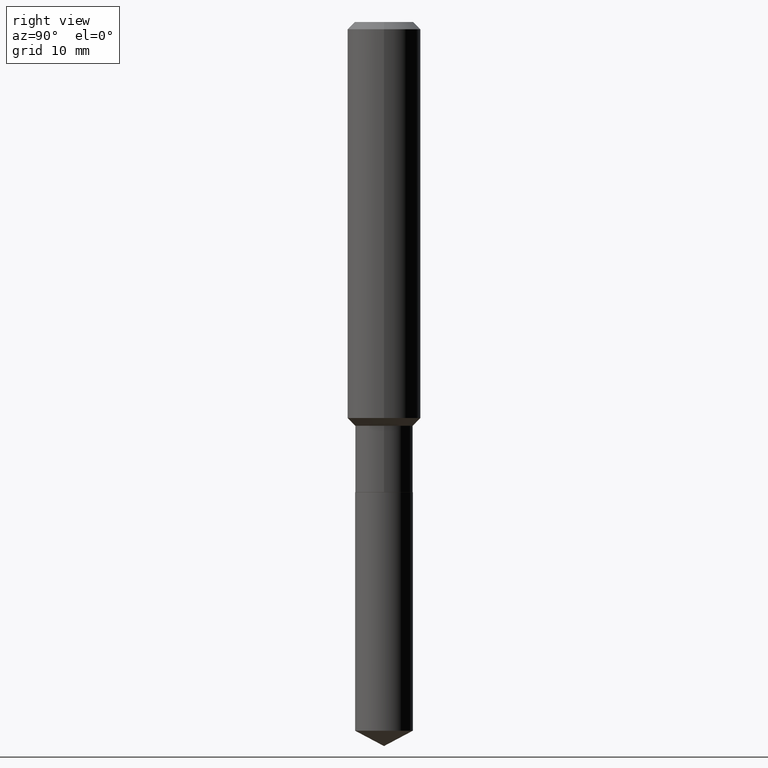
[diagram: clean part render]
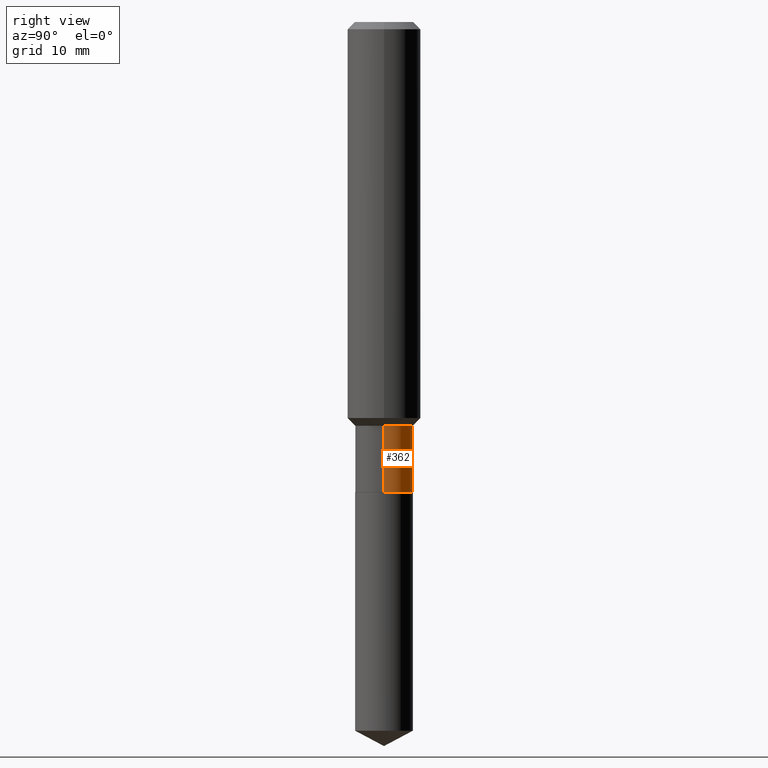
[diagram: same view with one face highlighted and labeled with its STEP entity id]
A machine part, right view. The second image highlights one B-rep face of the part: STEP entity #362.
In plain terms, the highlighted cylindrical surface (edge-blend (fillet) strip) has radius 3.1496 mm, axis along (-0, 0, 1).
Its self-contained STEP definition (entity closure, byte-faithful):
#21 = CARTESIAN_POINT ( 'NONE',  ( -0.1239999999999999991, 8.810729923425242242E-16, -6.099479511916082446E-30 ) ) ;
#33 = VECTOR ( 'NONE', #94, 39.37007874015748143 ) ;
#46 = CARTESIAN_POINT ( 'NONE',  ( 0.000000000000000000, 0.000000000000000000, 0.000000000000000000 ) ) ;
#66 = LINE ( 'NONE', #224, #33 ) ;
#94 = DIRECTION ( 'NONE',  ( -2.445468806185136877E-29, 3.491481338843145188E-15, 1.000000000000000000 ) ) ;
#141 = DIRECTION ( 'NONE',  ( 1.000000000000000000, -6.982962677686269866E-15, 0.000000000000000000 ) ) ;
#145 = EDGE_CURVE ( 'NONE', #148, #377, #262, .T. ) ;
#148 = VERTEX_POINT ( 'NONE', #193 ) ;
#153 = CYLINDRICAL_SURFACE ( 'NONE', #471, 0.1239999999999999991 ) ;
#166 = CARTESIAN_POINT ( 'NONE',  ( -0.1239999999999999575, -5.671564610331350140E-15, -1.734400000000000164 ) ) ;
#172 = EDGE_CURVE ( 'NONE', #235, #373, #456, .T. ) ;
#173 = EDGE_CURVE ( 'NONE', #235, #148, #66, .T. ) ;
#179 = DIRECTION ( 'NONE',  ( -2.445468806185136597E-29, 3.491481338843145583E-15, 1.000000000000000000 ) ) ;
#193 = CARTESIAN_POINT ( 'NONE',  ( 0.1239999999999999575, -6.921512606122648718E-15, -1.734400000000000164 ) ) ;
#209 = CARTESIAN_POINT ( 'NONE',  ( 4.241421097447501822E-29, -6.055625234089552182E-15, -1.734400000000000164 ) ) ;
#221 = ORIENTED_EDGE ( 'NONE', *, *, #252, .T. ) ;
#222 = ORIENTED_EDGE ( 'NONE', *, *, #172, .T. ) ;
#224 = CARTESIAN_POINT ( 'NONE',  ( 0.1239999999999999991, -8.658873720330970287E-16, 6.046459201986959935E-30 ) ) ;
#228 = EDGE_LOOP ( 'NONE', ( #222, #221, #490, #464 ) ) ;
#235 = VERTEX_POINT ( 'NONE', #242 ) ;
#241 = DIRECTION ( 'NONE',  ( 1.000000000000000000, -6.982962677686266711E-15, 4.876176775795935232E-29 ) ) ;
#242 = CARTESIAN_POINT ( 'NONE',  ( 0.1240000000000000130, -7.915537343291293082E-15, -2.019099999999999895 ) ) ;
#252 = EDGE_CURVE ( 'NONE', #373, #377, #381, .T. ) ;
#262 = CIRCLE ( 'NONE', #365, 0.1239999999999999575 ) ;
#273 = DIRECTION ( 'NONE',  ( -2.445468806185136877E-29, 3.491481338843145188E-15, 1.000000000000000000 ) ) ;
#293 = CARTESIAN_POINT ( 'NONE',  ( 4.937646066568409466E-29, -7.049649971258195757E-15, -2.019099999999999895 ) ) ;
#295 = VECTOR ( 'NONE', #273, 39.37007874015748143 ) ;
#345 = DIRECTION ( 'NONE',  ( -2.445468806185136597E-29, 3.491481338843145583E-15, 1.000000000000000000 ) ) ;
#351 = FACE_OUTER_BOUND ( 'NONE', #228, .T. ) ;
#352 = DIRECTION ( 'NONE',  ( -2.445468806185136597E-29, 3.491481338843145583E-15, 1.000000000000000000 ) ) ;
#362 = ADVANCED_FACE ( 'NONE', ( #351 ), #153, .T. ) ;
#365 = AXIS2_PLACEMENT_3D ( 'NONE', #209, #352, #453 ) ;
#373 = VERTEX_POINT ( 'NONE', #379 ) ;
#377 = VERTEX_POINT ( 'NONE', #166 ) ;
#379 = CARTESIAN_POINT ( 'NONE',  ( -0.1240000000000000269, -5.671564610331350140E-15, -2.019099999999999895 ) ) ;
#381 = LINE ( 'NONE', #21, #295 ) ;
#450 = AXIS2_PLACEMENT_3D ( 'NONE', #293, #179, #141 ) ;
#453 = DIRECTION ( 'NONE',  ( 1.000000000000000000, -6.982962677686265133E-15, 0.000000000000000000 ) ) ;
#456 = CIRCLE ( 'NONE', #450, 0.1240000000000000130 ) ;
#464 = ORIENTED_EDGE ( 'NONE', *, *, #173, .F. ) ;
#471 = AXIS2_PLACEMENT_3D ( 'NONE', #46, #345, #241 ) ;
#490 = ORIENTED_EDGE ( 'NONE', *, *, #145, .F. ) ;